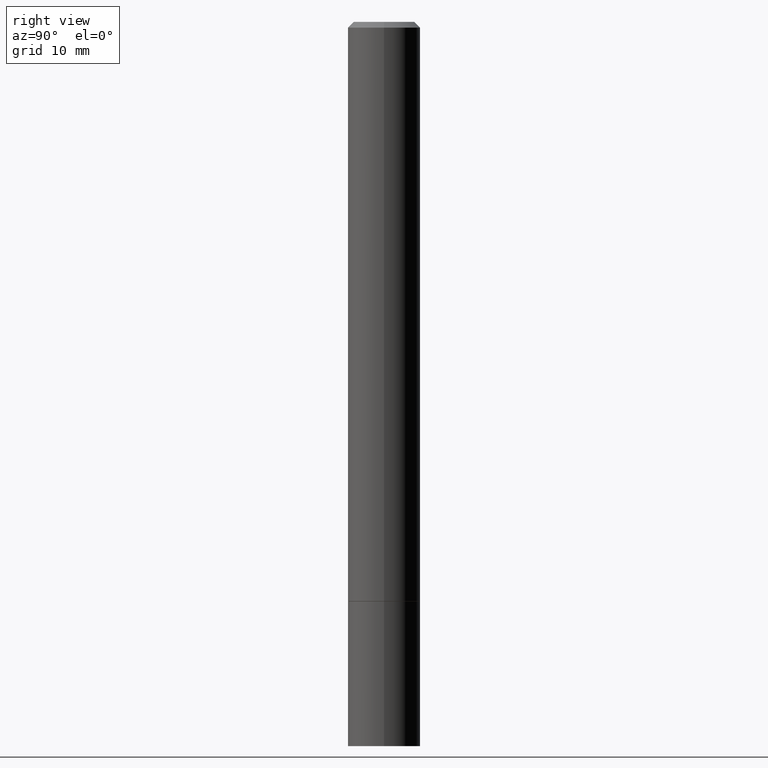
[diagram: clean part render]
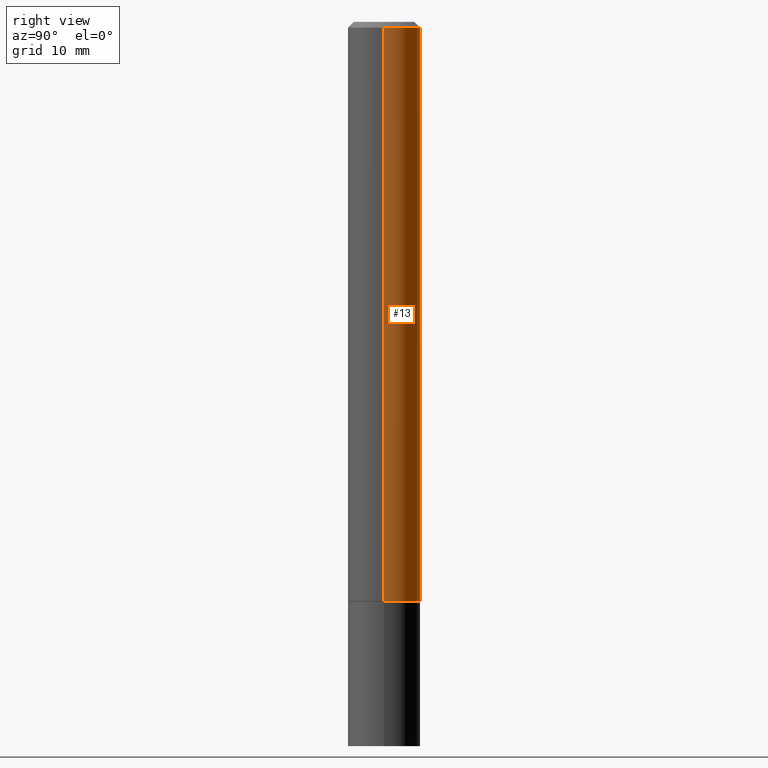
[diagram: same view with one face highlighted and labeled with its STEP entity id]
A machine part, right view. The second image highlights one B-rep face of the part: STEP entity #13.
In plain terms, the highlighted cylindrical surface (edge-blend (fillet) strip) has radius 3.175 mm, axis along (-0, 0, 1).
Its self-contained STEP definition (entity closure, byte-faithful):
#6 = DIRECTION ( 'NONE',  ( 1.000000000000000000, -6.982962677686266711E-15, 0.000000000000000000 ) ) ;
#9 = ORIENTED_EDGE ( 'NONE', *, *, #71, .F. ) ;
#11 = LINE ( 'NONE', #97, #87 ) ;
#13 = ADVANCED_FACE ( 'NONE', ( #321 ), #133, .T. ) ;
#14 = CARTESIAN_POINT ( 'NONE',  ( 0.1249999999999997224, -9.273918764983025741E-16, -0.02000000000000003511 ) ) ;
#16 = VERTEX_POINT ( 'NONE', #189 ) ;
#33 = DIRECTION ( 'NONE',  ( -2.445468806185136597E-29, 3.491481338843145583E-15, 1.000000000000000000 ) ) ;
#60 = AXIS2_PLACEMENT_3D ( 'NONE', #331, #304, #116 ) ;
#71 = EDGE_CURVE ( 'NONE', #16, #272, #82, .T. ) ;
#79 = VERTEX_POINT ( 'NONE', #310 ) ;
#82 = LINE ( 'NONE', #227, #93 ) ;
#87 = VECTOR ( 'NONE', #239, 39.37007874015748143 ) ;
#93 = VECTOR ( 'NONE', #361, 39.37007874015748143 ) ;
#97 = CARTESIAN_POINT ( 'NONE',  ( -0.1249999999999998612, 8.881784197001242463E-16, -6.148668862818625221E-30 ) ) ;
#116 = DIRECTION ( 'NONE',  ( 1.000000000000000000, -6.982962677686262766E-15, 0.000000000000000000 ) ) ;
#128 = VERTEX_POINT ( 'NONE', #284 ) ;
#133 = CYLINDRICAL_SURFACE ( 'NONE', #279, 0.1249999999999998612 ) ;
#135 = EDGE_LOOP ( 'NONE', ( #208, #319, #302, #9 ) ) ;
#165 = EDGE_CURVE ( 'NONE', #272, #79, #257, .T. ) ;
#189 = CARTESIAN_POINT ( 'NONE',  ( 0.1250000000000000000, -7.852341531058230708E-15, -1.998999999999999888 ) ) ;
#208 = ORIENTED_EDGE ( 'NONE', *, *, #238, .T. ) ;
#227 = CARTESIAN_POINT ( 'NONE',  ( 0.1249999999999998612, -8.728703347107823527E-16, 6.095220969744912735E-30 ) ) ;
#238 = EDGE_CURVE ( 'NONE', #16, #128, #349, .T. ) ;
#239 = DIRECTION ( 'NONE',  ( -2.445468806185136877E-29, 3.491481338843145188E-15, 1.000000000000000000 ) ) ;
#245 = CARTESIAN_POINT ( 'NONE',  ( 0.000000000000000000, 0.000000000000000000, 0.000000000000000000 ) ) ;
#257 = CIRCLE ( 'NONE', #307, 0.1249999999999997224 ) ;
#272 = VERTEX_POINT ( 'NONE', #14 ) ;
#279 = AXIS2_PLACEMENT_3D ( 'NONE', #245, #358, #353 ) ;
#284 = CARTESIAN_POINT ( 'NONE',  ( -0.1250000000000000000, -2.636471991862026157E-15, -1.998999999999999888 ) ) ;
#302 = ORIENTED_EDGE ( 'NONE', *, *, #165, .F. ) ;
#304 = DIRECTION ( 'NONE',  ( -2.445468806185136597E-29, 3.491481338843145583E-15, 1.000000000000000000 ) ) ;
#307 = AXIS2_PLACEMENT_3D ( 'NONE', #341, #33, #6 ) ;
#310 = CARTESIAN_POINT ( 'NONE',  ( -0.1249999999999997224, 8.030407079339183643E-16, -0.02000000000000003511 ) ) ;
#319 = ORIENTED_EDGE ( 'NONE', *, *, #339, .T. ) ;
#321 = FACE_OUTER_BOUND ( 'NONE', #135, .T. ) ;
#331 = CARTESIAN_POINT ( 'NONE',  ( 4.888492143564087591E-29, -6.979471196347447369E-15, -1.998999999999999888 ) ) ;
#339 = EDGE_CURVE ( 'NONE', #128, #79, #11, .T. ) ;
#341 = CARTESIAN_POINT ( 'NONE',  ( 4.890937612370281041E-31, -6.982962677686302702E-17, -0.02000000000000003511 ) ) ;
#349 = CIRCLE ( 'NONE', #60, 0.1250000000000000000 ) ;
#353 = DIRECTION ( 'NONE',  ( 1.000000000000000000, -6.982962677686266711E-15, 4.876176775795935793E-29 ) ) ;
#358 = DIRECTION ( 'NONE',  ( -2.445468806185136597E-29, 3.491481338843145583E-15, 1.000000000000000000 ) ) ;
#361 = DIRECTION ( 'NONE',  ( -2.445468806185136877E-29, 3.491481338843145188E-15, 1.000000000000000000 ) ) ;